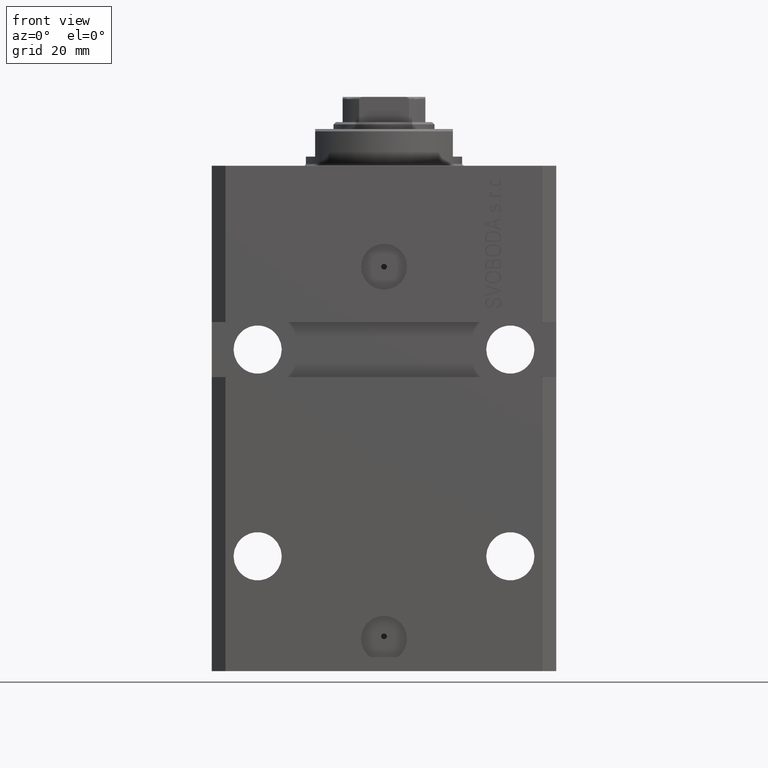
[diagram: clean part render]
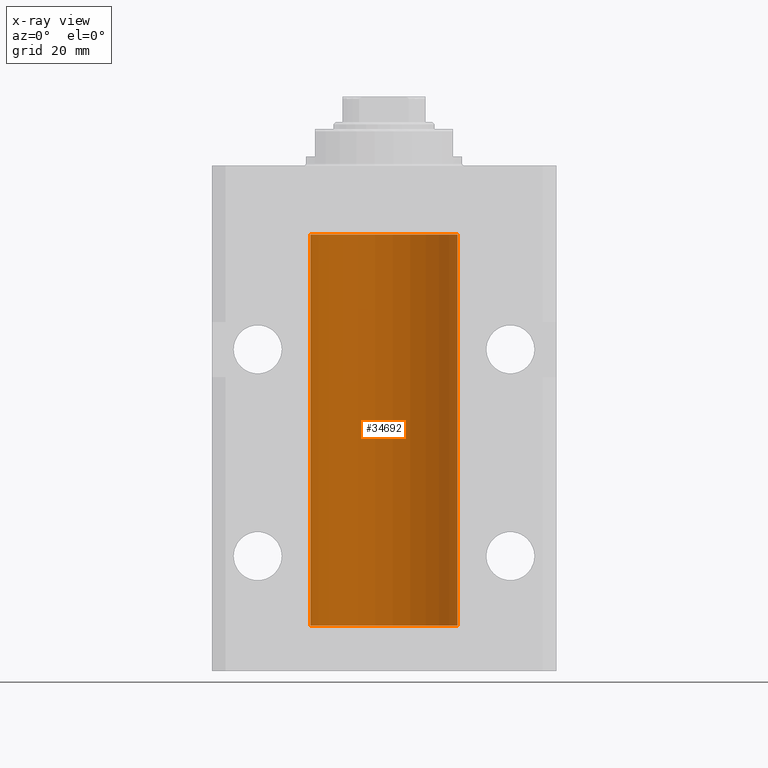
[diagram: x-ray — body ghosted, one internal face saturated and labeled with its STEP entity id]
A machine part, front view, then the same camera in x-ray: the body is ghosted and one INTERNAL B-rep face — a face not visible from any outside direction — is saturated and labeled: STEP entity #34692.
In plain terms, the highlighted cylindrical surface (partial cylindrical patch) has radius 16 mm, axis along (0, 0, 1).
Its self-contained STEP definition (entity closure, byte-faithful):
#297 = DIRECTION ( 'NONE',  ( 1.000000000000000000, 0.000000000000000000, 0.000000000000000000 ) ) ;
#832 = EDGE_CURVE ( 'NONE', #9154, #39246, #8804, .T. ) ;
#997 = DIRECTION ( 'NONE',  ( 1.000000000000000000, 0.000000000000000000, 0.000000000000000000 ) ) ;
#1572 = CARTESIAN_POINT ( 'NONE',  ( -16.00000000000000000, -1.303459030566954747E-14, -97.37500000000000000 ) ) ;
#1606 = DIRECTION ( 'NONE',  ( -0.000000000000000000, -0.000000000000000000, 1.000000000000000000 ) ) ;
#1771 = CARTESIAN_POINT ( 'NONE',  ( -16.00000000000013145, 3.685127046438747128E-13, -98.62500000000343903 ) ) ;
#1918 = EDGE_CURVE ( 'NONE', #3856, #16378, #18806, .T. ) ;
#3531 = DIRECTION ( 'NONE',  ( -0.000000000000000000, -0.000000000000000000, 1.000000000000000000 ) ) ;
#3856 = VERTEX_POINT ( 'NONE', #24874 ) ;
#4165 = CARTESIAN_POINT ( 'NONE',  ( -15.99548640841683067, 0.3843705577988847377, -21.50046628527008608 ) ) ;
#4700 = CARTESIAN_POINT ( 'NONE',  ( -15.99999999999998934, 0.1631714642025804407, -98.62499999999987210 ) ) ;
#5468 = VECTOR ( 'NONE', #8311, 1000.000000000000000 ) ;
#5907 = CARTESIAN_POINT ( 'NONE',  ( -16.00000000000000000, 1.959434878635765131E-15, -100.0999999999999943 ) ) ;
#7357 = CARTESIAN_POINT ( 'NONE',  ( -16.00000000000000000, 1.959434878635765131E-15, -100.0999999999999943 ) ) ;
#7877 = VERTEX_POINT ( 'NONE', #45720 ) ;
#8244 = CARTESIAN_POINT ( 'NONE',  ( -15.98778717651346071, 0.6250289588122140971, -22.08131585687052478 ) ) ;
#8305 = CARTESIAN_POINT ( 'NONE',  ( -15.99070426498503572, 0.5462220647145610286, -98.31460064614144301 ) ) ;
#8311 = DIRECTION ( 'NONE',  ( -0.000000000000000000, -0.000000000000000000, 1.000000000000000000 ) ) ;
#8531 = CARTESIAN_POINT ( 'NONE',  ( -15.98779057735153941, 0.6249419637998017141, -97.83670145863504786 ) ) ;
#8804 = LINE ( 'NONE', #38007, #26990 ) ;
#9010 = EDGE_CURVE ( 'NONE', #14407, #7877, #36329, .T. ) ;
#9154 = VERTEX_POINT ( 'NONE', #5907 ) ;
#11199 = AXIS2_PLACEMENT_3D ( 'NONE', #28435, #43052, #46184 ) ;
#11560 = DIRECTION ( 'NONE',  ( -0.000000000000000000, -0.000000000000000000, 1.000000000000000000 ) ) ;
#11594 = CARTESIAN_POINT ( 'NONE',  ( -15.98779057735153941, 0.6249419637998100407, -21.83670145863507273 ) ) ;
#13284 = B_SPLINE_CURVE_WITH_KNOTS ( 'NONE', 3,
 ( #30726, #40794, #36959, #23309, #4165, #45348, #11594, #8244, #22842, #15895, #23078, #44402, #25949, #30488 ),
 .UNSPECIFIED., .F., .F.,
 ( 4, 2, 2, 2, 2, 2, 4 ),
 ( 1.597328219370744179E-19, 0.0002442776652680942405, 0.0004885553305361882643, 0.0009771106610723839011, 0.001221388326340481665, 0.001465665991608579430, 0.001954221322144767369 ),
 .UNSPECIFIED. ) ;
#14407 = VERTEX_POINT ( 'NONE', #43071 ) ;
#15895 = CARTESIAN_POINT ( 'NONE',  ( -15.99070426498503217, 0.5462220647145618058, -22.31460064614143590 ) ) ;
#16378 = VERTEX_POINT ( 'NONE', #16879 ) ;
#16879 = CARTESIAN_POINT ( 'NONE',  ( 16.00000000000000000, 0.000000000000000000, -15.00000000000000000 ) ) ;
#17080 = CARTESIAN_POINT ( 'NONE',  ( -16.00000000000000000, 1.643679961284177128E-16, -21.37499999999999645 ) ) ;
#17113 = ORIENTED_EDGE ( 'NONE', *, *, #1918, .T. ) ;
#17247 = B_SPLINE_CURVE_WITH_KNOTS ( 'NONE', 3,
 ( #1572, #30306, #26238, #41094, #40849, #26474, #8531, #30065, #44699, #8305, #22654, #30544, #4700, #45169 ),
 .UNSPECIFIED., .F., .F.,
 ( 4, 2, 2, 2, 2, 2, 4 ),
 ( 1.003919637555167698E-18, 0.0002442776652680894158, 0.0004885553305361776391, 0.0009771106610723541940, 0.001221388326340463017, 0.001465665991608572274, 0.001954221322144760863 ),
 .UNSPECIFIED. ) ;
#18717 = DIRECTION ( 'NONE',  ( 0.000000000000000000, 0.000000000000000000, 1.000000000000000000 ) ) ;
#18806 = LINE ( 'NONE', #22640, #34659 ) ;
#19762 = VERTEX_POINT ( 'NONE', #41332 ) ;
#22640 = CARTESIAN_POINT ( 'NONE',  ( 16.00000000000000000, 0.000000000000000000, -100.0999999999999943 ) ) ;
#22654 = CARTESIAN_POINT ( 'NONE',  ( -15.99228023727724057, 0.5003781296993360383, -98.38347829554236057 ) ) ;
#22842 = CARTESIAN_POINT ( 'NONE',  ( -15.98844267028591482, 0.6088369347963316081, -22.16324735024328518 ) ) ;
#23078 = CARTESIAN_POINT ( 'NONE',  ( -15.99228023727724413, 0.5003781296993413674, -22.38347829554236057 ) ) ;
#23309 = CARTESIAN_POINT ( 'NONE',  ( -15.99707730059171240, 0.3150375992092407373, -21.45402333202571654 ) ) ;
#23890 = EDGE_CURVE ( 'NONE', #24431, #19762, #37020, .T. ) ;
#24431 = VERTEX_POINT ( 'NONE', #17080 ) ;
#24874 = CARTESIAN_POINT ( 'NONE',  ( 16.00000000000000000, 0.000000000000000000, -100.0999999999999943 ) ) ;
#25547 = CARTESIAN_POINT ( 'NONE',  ( -16.00000000000000000, 1.959434878635765131E-15, -100.0999999999999943 ) ) ;
#25949 = CARTESIAN_POINT ( 'NONE',  ( -16.00000000000000000, 0.1631714642025800244, -22.62499999999985789 ) ) ;
#26145 = CYLINDRICAL_SURFACE ( 'NONE', #36316, 16.00000000000000000 ) ;
#26238 = CARTESIAN_POINT ( 'NONE',  ( -15.99934216141748244, 0.1636497843296308152, -97.39126528029306940 ) ) ;
#26474 = CARTESIAN_POINT ( 'NONE',  ( -15.99070653155267685, 0.5573233280232928744, -97.67348148680505915 ) ) ;
#26990 = VECTOR ( 'NONE', #1606, 1000.000000000000000 ) ;
#28435 = CARTESIAN_POINT ( 'NONE',  ( 0.000000000000000000, 0.000000000000000000, -15.00000000000000000 ) ) ;
#29338 = DIRECTION ( 'NONE',  ( -0.000000000000000000, -0.000000000000000000, 1.000000000000000000 ) ) ;
#30065 = CARTESIAN_POINT ( 'NONE',  ( -15.98778717651346604, 0.6250289588122097673, -98.08131585687051768 ) ) ;
#30188 = CIRCLE ( 'NONE', #47015, 16.00000000000000000 ) ;
#30306 = CARTESIAN_POINT ( 'NONE',  ( -16.00000000000000711, 0.08259886010188650929, -97.37500000000000000 ) ) ;
#30488 = CARTESIAN_POINT ( 'NONE',  ( -16.00000000000013145, 3.685127038166941002E-13, -22.62500000000341771 ) ) ;
#30544 = CARTESIAN_POINT ( 'NONE',  ( -15.99711699979841661, 0.3253759916140614439, -98.55856151623174810 ) ) ;
#30726 = CARTESIAN_POINT ( 'NONE',  ( -16.00000000000000000, 1.643679961284177128E-16, -21.37499999999999645 ) ) ;
#33794 = CARTESIAN_POINT ( 'NONE',  ( 0.000000000000000000, 0.000000000000000000, -100.0999999999999943 ) ) ;
#33918 = ORIENTED_EDGE ( 'NONE', *, *, #45156, .T. ) ;
#34659 = VECTOR ( 'NONE', #29338, 1000.000000000000000 ) ;
#34692 = ADVANCED_FACE ( 'NONE', ( #37169 ), #26145, .F. ) ;
#35330 = ORIENTED_EDGE ( 'NONE', *, *, #41681, .T. ) ;
#35655 = VECTOR ( 'NONE', #3531, 1000.000000000000000 ) ;
#36316 = AXIS2_PLACEMENT_3D ( 'NONE', #44373, #11560, #297 ) ;
#36329 = LINE ( 'NONE', #25547, #35655 ) ;
#36361 = ORIENTED_EDGE ( 'NONE', *, *, #36930, .T. ) ;
#36809 = ORIENTED_EDGE ( 'NONE', *, *, #9010, .F. ) ;
#36930 = EDGE_CURVE ( 'NONE', #14407, #39246, #17247, .T. ) ;
#36959 = CARTESIAN_POINT ( 'NONE',  ( -15.99934216141748244, 0.1636497843296417787, -21.39126528029306229 ) ) ;
#37020 = LINE ( 'NONE', #7357, #5468 ) ;
#37169 = FACE_OUTER_BOUND ( 'NONE', #41308, .T. ) ;
#38007 = CARTESIAN_POINT ( 'NONE',  ( -16.00000000000000000, 1.959434878635765131E-15, -100.0999999999999943 ) ) ;
#38510 = EDGE_CURVE ( 'NONE', #3856, #9154, #30188, .T. ) ;
#39246 = VERTEX_POINT ( 'NONE', #1771 ) ;
#39931 = ORIENTED_EDGE ( 'NONE', *, *, #23890, .F. ) ;
#40794 = CARTESIAN_POINT ( 'NONE',  ( -16.00000000000000711, 0.08259886010189904093, -21.37500000000000000 ) ) ;
#40849 = CARTESIAN_POINT ( 'NONE',  ( -15.99548640841682712, 0.3843705577988784650, -97.50046628527007897 ) ) ;
#41094 = CARTESIAN_POINT ( 'NONE',  ( -15.99707730059171240, 0.3150375992092294686, -97.45402333202572720 ) ) ;
#41308 = EDGE_LOOP ( 'NONE', ( #44277, #45905, #17113, #35330, #39931, #33918, #36809, #36361 ) ) ;
#41332 = CARTESIAN_POINT ( 'NONE',  ( -16.00000000000000000, 1.959434878635765131E-15, -15.00000000000000000 ) ) ;
#41681 = EDGE_CURVE ( 'NONE', #16378, #19762, #45626, .T. ) ;
#43052 = DIRECTION ( 'NONE',  ( 0.000000000000000000, 0.000000000000000000, 1.000000000000000000 ) ) ;
#43071 = CARTESIAN_POINT ( 'NONE',  ( -16.00000000000000000, -1.303459030566954747E-14, -97.37500000000000000 ) ) ;
#44277 = ORIENTED_EDGE ( 'NONE', *, *, #832, .F. ) ;
#44373 = CARTESIAN_POINT ( 'NONE',  ( 0.000000000000000000, 0.000000000000000000, -100.0999999999999943 ) ) ;
#44402 = CARTESIAN_POINT ( 'NONE',  ( -15.99711699979842017, 0.3253759916140657737, -22.55856151623175521 ) ) ;
#44699 = CARTESIAN_POINT ( 'NONE',  ( -15.98844267028590949, 0.6088369347963275002, -98.16324735024325321 ) ) ;
#45156 = EDGE_CURVE ( 'NONE', #24431, #7877, #13284, .T. ) ;
#45169 = CARTESIAN_POINT ( 'NONE',  ( -16.00000000000013145, 3.685127046438747128E-13, -98.62500000000343903 ) ) ;
#45348 = CARTESIAN_POINT ( 'NONE',  ( -15.99070653155267685, 0.5573233280232986475, -21.67348148680506625 ) ) ;
#45626 = CIRCLE ( 'NONE', #11199, 16.00000000000000000 ) ;
#45720 = CARTESIAN_POINT ( 'NONE',  ( -16.00000000000013145, 3.685127038166941002E-13, -22.62500000000341771 ) ) ;
#45905 = ORIENTED_EDGE ( 'NONE', *, *, #38510, .F. ) ;
#46184 = DIRECTION ( 'NONE',  ( 1.000000000000000000, 0.000000000000000000, 0.000000000000000000 ) ) ;
#47015 = AXIS2_PLACEMENT_3D ( 'NONE', #33794, #18717, #997 ) ;